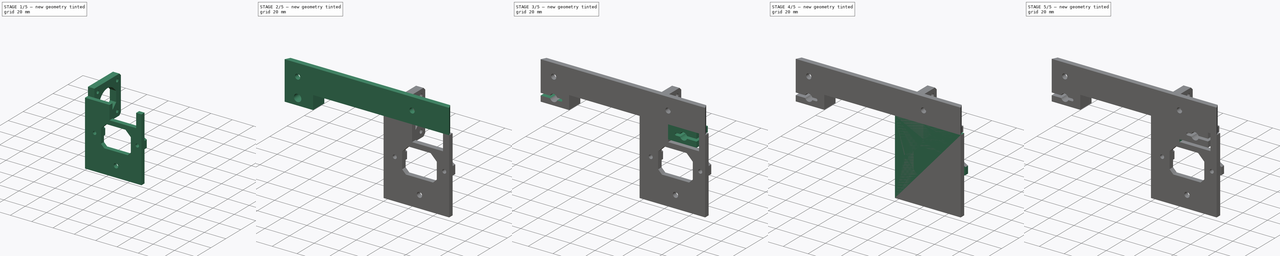
[diagram: build sequence overview — one tinted view per stage of 5, left to right]
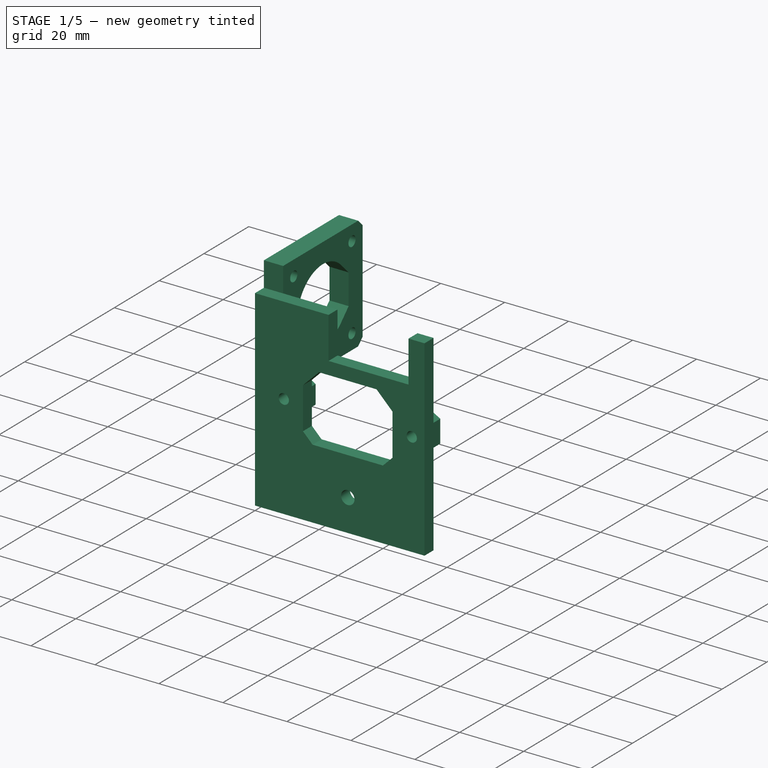
[diagram: stage 1 of 5 — iso view after this stage's code; geometry added in this stage tinted green]
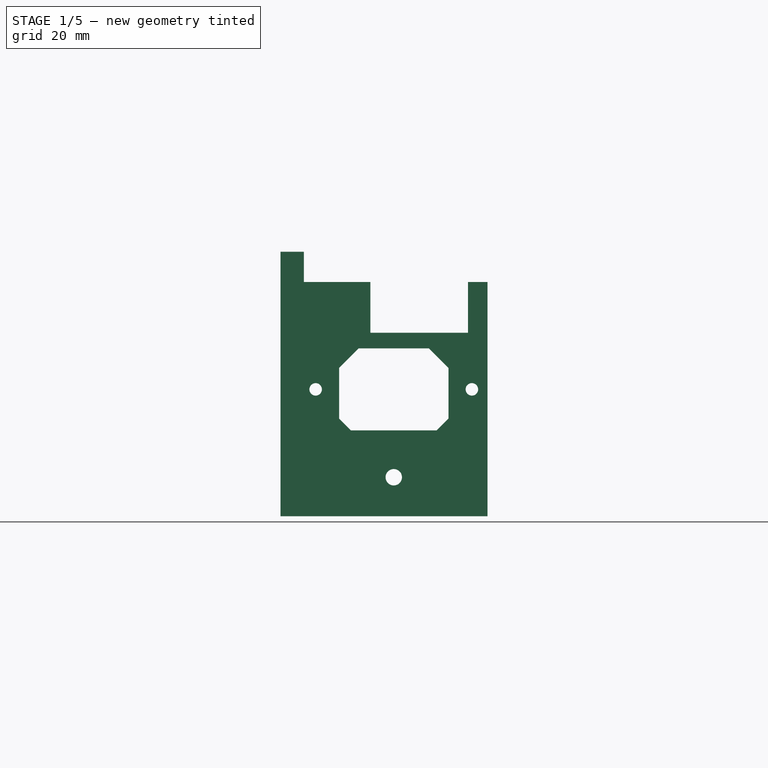
[diagram: stage 1 of 5 — front view after this stage's code; geometry added in this stage tinted green]
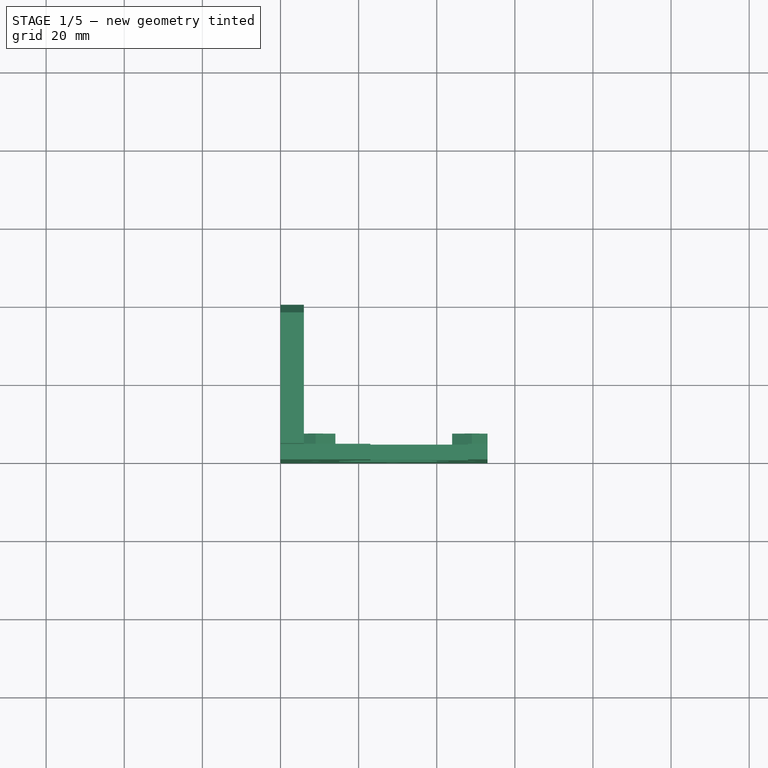
[diagram: stage 1 of 5 — top view after this stage's code; geometry added in this stage tinted green]
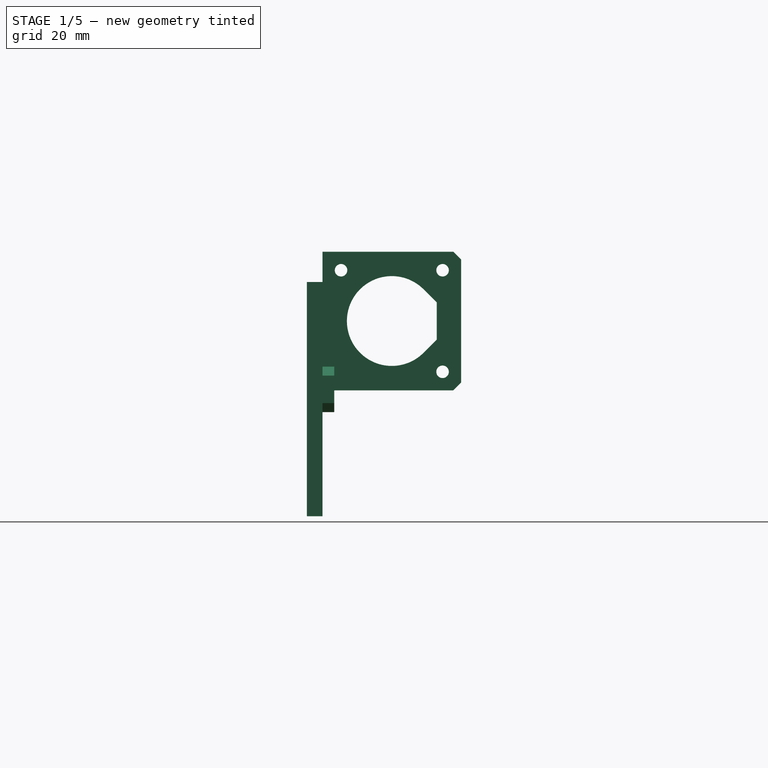
[diagram: stage 1 of 5 — right view after this stage's code; geometry added in this stage tinted green]
FCSTD DOCUMENT  (FreeCAD 0.14R3692 (Git))
Label: y-motor
License: CC-BY 3.0
LicenseURL: http://creativecommons.org/licenses/by/3.0/
objects: Sketcher::SketchObject×10, PartDesign::Pocket×9, Part::Feature×7, Part::Box×4, Part::Chamfer×2, Part::MultiFuse×2, Part::Mirroring×1, Part::Prism×1, Part::Thickness×1, Part::FeaturePython×1, App::DocumentObjectGroup×1, PartDesign::Pad×1
note: 49 computed .brp shape members not serialized (recipe doc carries the construction recipe); baked Part::Feature solids carry a one-line shape summary decoded from their .brp

FEATURE [Part::Box] Box003  label="motor-cube"
  Height = 35.5
  Length = 6
  Placement = pos=(80,4,-27.75) rot=(0,0,1;0rad)
  Width = 35.5
FEATURE [Sketcher::SketchObject] Sketch006  label="motor-holes-cutout-sketch"
  Placement = pos=(86,4,-27.75) rot=(0.57735,0.57735,0.57735;2.0944rad)
  Support = -> Box003 [Face2]
  sketch-geometry (7):
    g0: ArcOfCircle CenterX=17.75 CenterY=17.75 CenterZ=0 NormalX=0 NormalY=0 NormalZ=1 Radius=11.5 StartAngle=0.785397 EndAngle=5.49779
    g1: Circle CenterX=30.75 CenterY=4.75 CenterZ=0 NormalX=0 NormalY=0 NormalZ=1 Radius=1.6
    g2: Circle CenterX=4.75 CenterY=30.75 CenterZ=0 NormalX=0 NormalY=0 NormalZ=1 Radius=1.6
    g3: Circle CenterX=30.75 CenterY=30.75 CenterZ=0 NormalX=0 NormalY=0 NormalZ=1 Radius=1.6
    g4: LineSegment StartX=25.8817 StartY=25.8817 StartZ=0 EndX=29.25 EndY=22.5134 EndZ=0
    g5: LineSegment StartX=29.25 StartY=22.5134 StartZ=0 EndX=29.25 EndY=12.9865 EndZ=0
    g6: LineSegment StartX=29.25 StartY=12.9865 StartZ=0 EndX=25.8817 EndY=9.61826 EndZ=0
  constraints (22):
    c: DistanceX(g-1,g0) = 17.75
    c: DistanceY(g-1,g0) = 17.75
    c: Radius(g3) = 1.6
    c: Equal(g3,g2)
    c: Equal(g2,g1)
    c: DistanceX(g2,g0) = 13
    c: DistanceY(g0,g2) = 13
    c: DistanceX(g0,g3) = 13
    c: DistanceY(g0,g3) = 13
    c: DistanceX(g0,g1) = 13
    c: DistanceY(g1,g0) = 13
    c: Radius(g0) = 11.5
    c: Coincident(g4,g5)
    c: Coincident(g5,g6)
    c: Vertical(g5)
    c: Angle(g4,g6) = 1.5708
    c: Equal(g6,g4)
    c: DistanceX(g0,g5) = 11.5
    c: Coincident(g0,g4)
    c: Coincident(g6,g0)
    c: Tangent(g6,g0)
    c: Tangent(g4,g0)
FEATURE [PartDesign::Pocket] Pocket006  label="motor-holes-cutout-pocket"
  Length = 6
  Placement = pos=(80,4,-27.75) rot=(0,0,1;0rad)
  Sketch = -> Sketch006
  Type = 0
FEATURE [Part::Chamfer] Chamfer  label="motor-chamfer"
  Base = -> Pocket006
  Edges = 2 edges r=2: [Edge6,Edge18]
FEATURE [Part::Feature] Fusion001  label="plug-nuts-fusion-refined"
  shape: bbox 54.05 x 7.002 x 60 mm, 50 faces (baked)
FEATURE [Sketcher::SketchObject] Sketch011  label="plug-nut-cutout-sketch"
  Placement = pos=(0,7,0) rot=(0,0.707107,0.707107;3.14159rad)
  Support = -> Fusion001 [Face42]
  sketch-geometry (4):
    g0: LineSegment StartX=-133 StartY=-22.5 StartZ=0 EndX=-135 EndY=-22.5 EndZ=0
    g1: LineSegment StartX=-135 StartY=-22.5 StartZ=0 EndX=-135 EndY=-32.5 EndZ=0
    g2: LineSegment StartX=-135 StartY=-32.5 StartZ=0 EndX=-133 EndY=-32.5 EndZ=0
    g3: LineSegment StartX=-133 StartY=-32.5 StartZ=0 EndX=-133 EndY=-22.5 EndZ=0
  constraints (12):
    c: Coincident(g0,g1)
    c: Coincident(g1,g2)
    c: Coincident(g2,g3)
    c: Coincident(g3,g0)
    c: Horizontal(g0)
    c: Horizontal(g2)
    c: Vertical(g1)
    c: Vertical(g3)
    c: DistanceY(g3) = 10
    c: DistanceX(g0) = -2
    c: DistanceY(g-1,g0) = -22.5
    c: DistanceX(g-1,g0) = -133
FEATURE [PartDesign::Pocket] Pocket009002  label="plug-nut-cutout-pocket"
  Length = 3
  Sketch = -> Sketch011
  Type = 0
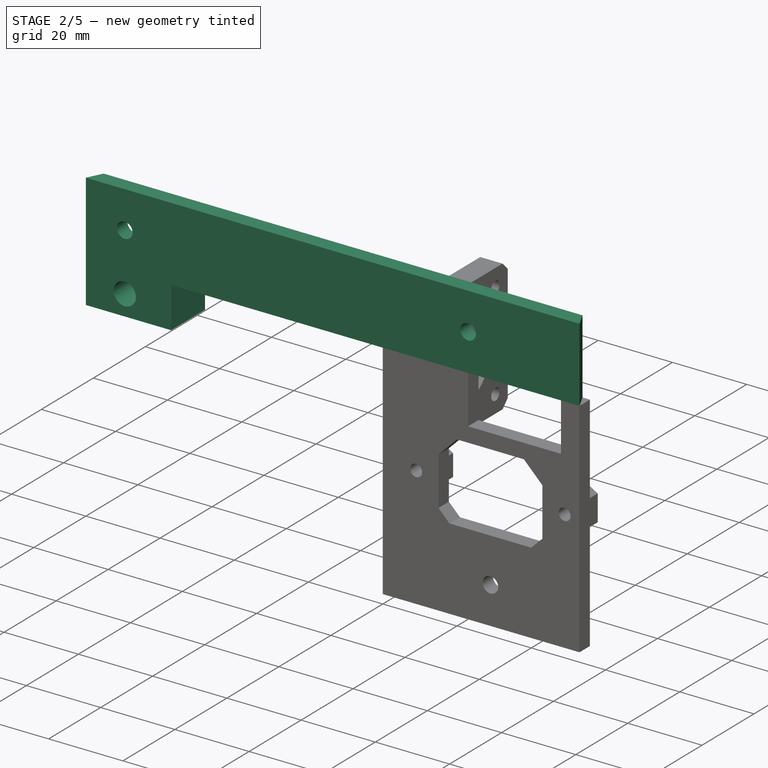
[diagram: stage 2 of 5 — iso view after this stage's code; geometry added in this stage tinted green]
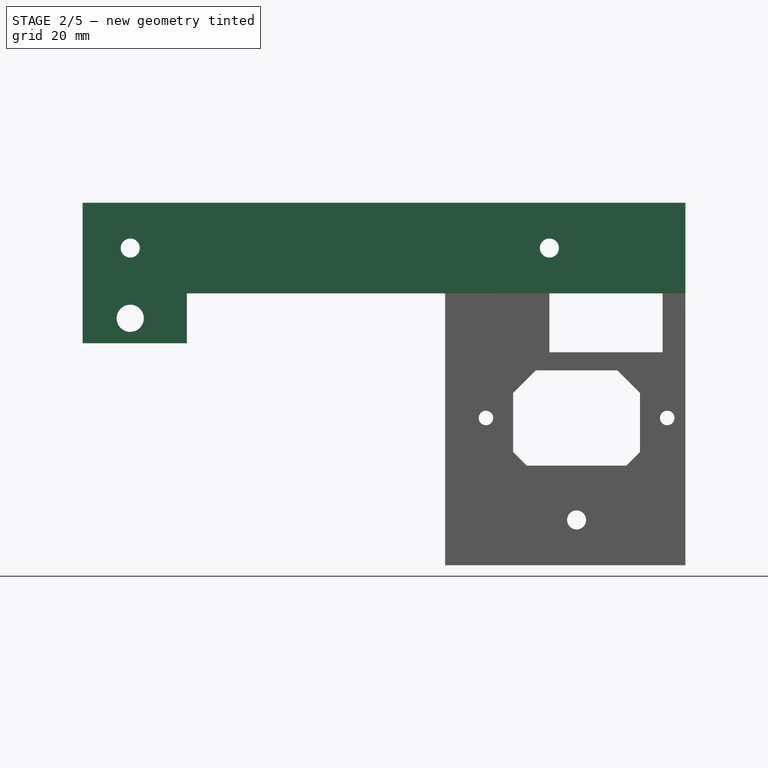
[diagram: stage 2 of 5 — front view after this stage's code; geometry added in this stage tinted green]
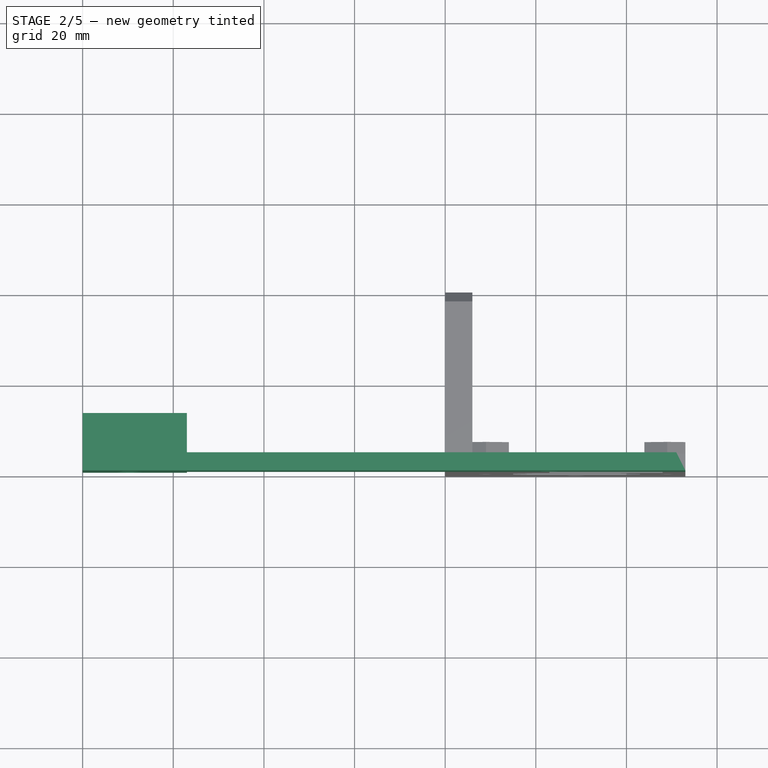
[diagram: stage 2 of 5 — top view after this stage's code; geometry added in this stage tinted green]
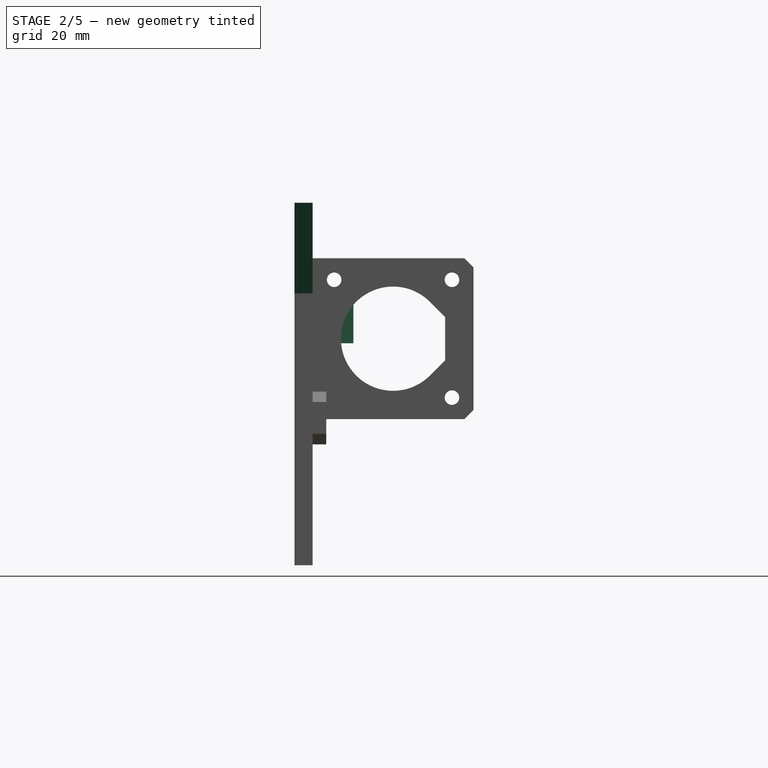
[diagram: stage 2 of 5 — right view after this stage's code; geometry added in this stage tinted green]
FEATURE [Part::Box] Box  label="body-cube"
  Height = 20
  Length = 133
  Width = 4
FEATURE [Part::Box] Box002  label="smooth-rod-y-left-holder-cube"
  Height = 11
  Length = 23
  Placement = pos=(0,0,-11) rot=(0,0,1;0rad)
  Width = 13
FEATURE [Sketcher::SketchObject] Sketch  label="smooth-rod-y-left-hole-sketch"
  Placement = pos=(0,13,-11) rot=(0,0.707107,0.707107;3.14159rad)
  Support = -> Box002 [Face4]
  sketch-geometry (1):
    g0: Circle CenterX=-10.5 CenterY=5.5 CenterZ=0 NormalX=0 NormalY=0 NormalZ=1 Radius=3
  constraints (3):
    c: Radius(g0) = 3
    c: DistanceX(g-1,g0) = -10.5
    c: DistanceY(g-1,g0) = 5.5
FEATURE [PartDesign::Pocket] Pocket  label="smooth-rod-y-left-hole-pocket"
  Length = 13
  Placement = pos=(0,0,-11) rot=(0,0,1;0rad)
  Sketch = -> Sketch
  Type = 0
FEATURE [Sketcher::SketchObject] Sketch004  label="slot-rear-top-screw-holes-sketch"
  Placement = pos=(0,4,0) rot=(0,0.707107,0.707107;3.14159rad)
  Support = -> Box [Face4]
  sketch-geometry (2):
    g0: Circle CenterX=-10.5 CenterY=10 CenterZ=0 NormalX=0 NormalY=0 NormalZ=1 Radius=2.1
    g1: Circle CenterX=-103 CenterY=10 CenterZ=0 NormalX=0 NormalY=0 NormalZ=1 Radius=2.1
  constraints (6):
    c: DistanceX(g-1,g0) = -10.5
    c: DistanceY(g-1,g0) = 10
    c: Radius(g0) = 2.1
    c: DistanceX(g-1,g1) = -103
    c: DistanceY(g-1,g1) = 10
    c: Equal(g1,g0)
FEATURE [PartDesign::Pocket] Pocket004  label="slot-rear-top-screw-holes-pocket"
  Length = 4
  Sketch = -> Sketch004
  Type = 0
FEATURE [Sketcher::SketchObject] Sketch009  label="slot-rear-top-chamfer-sketch"
  ExternalGeometry = -> [Pocket004]
  Placement = pos=(0,0,20) rot=(0,0,1;0rad)
  Support = -> Pocket004 [Face3]
  sketch-geometry (6):
    g0: LineSegment StartX=0 StartY=0 StartZ=0 EndX=2 EndY=4 EndZ=0
    g1: LineSegment StartX=2 StartY=4 StartZ=0 EndX=0 EndY=4 EndZ=0
    g2: LineSegment StartX=0 StartY=4 StartZ=0 EndX=0 EndY=0 EndZ=0
    g3: LineSegment StartX=133 StartY=0 StartZ=0 EndX=131 EndY=4 EndZ=0
    g4: LineSegment StartX=131 StartY=4 StartZ=0 EndX=133 EndY=4 EndZ=0
    g5: LineSegment StartX=133 StartY=4 StartZ=0 EndX=133 EndY=0 EndZ=0
  constraints (15):
    c: Coincident(g0,g1)
    c: Coincident(g1,g2)
    c: Coincident(g2,g0)
    c: Vertical(g2)
    c: Horizontal(g1)
    c: Coincident(g0,g-1)
    c: DistanceY(g2) = -4
    c: DistanceX(g1) = -2
    c: Coincident(g3,g4)
    c: Coincident(g4,g5)
    c: Coincident(g5,g3)
    c: Horizontal(g4)
    c: Coincident(g4,g-3)
    c: Coincident(g3,g-3)
    c: Equal(g4,g1)
FEATURE [PartDesign::Pocket] Pocket008  label="slot-rear-top-chamfer-pocket"
  Length = 20
  Sketch = -> Sketch009
  Type = 0
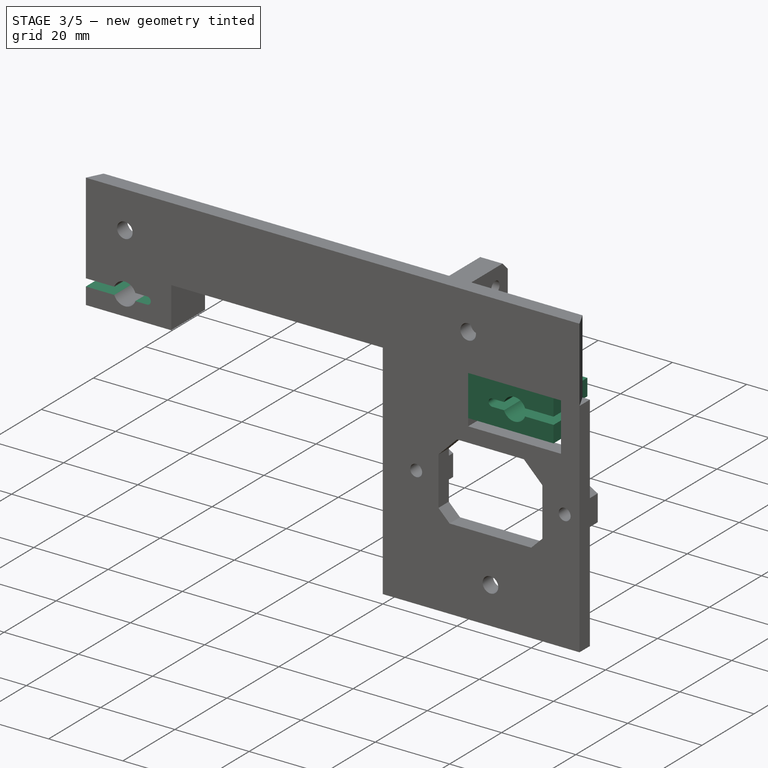
[diagram: stage 3 of 5 — iso view after this stage's code; geometry added in this stage tinted green]
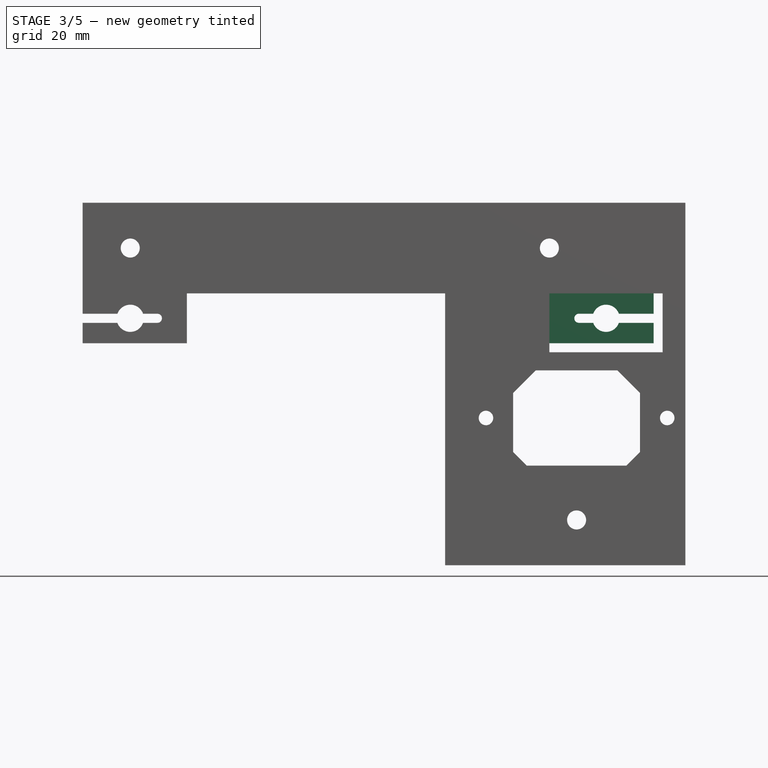
[diagram: stage 3 of 5 — front view after this stage's code; geometry added in this stage tinted green]
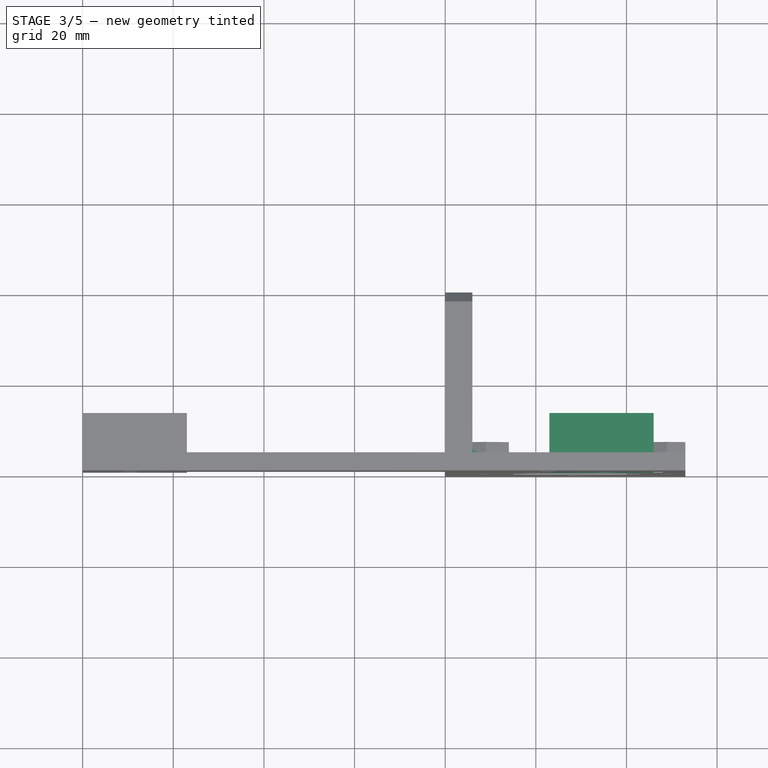
[diagram: stage 3 of 5 — top view after this stage's code; geometry added in this stage tinted green]
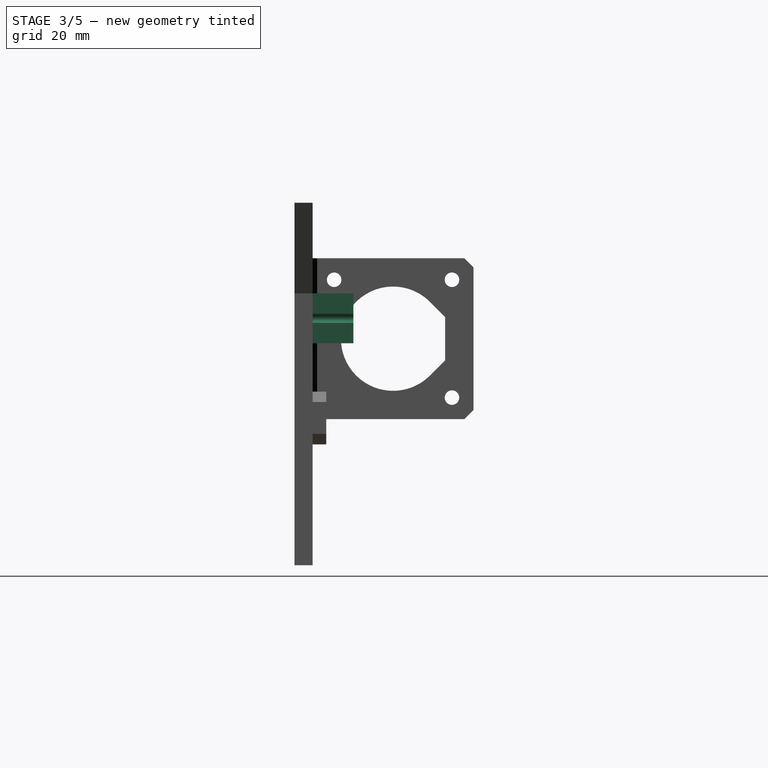
[diagram: stage 3 of 5 — right view after this stage's code; geometry added in this stage tinted green]
FEATURE [Sketcher::SketchObject] Sketch001  label="smooth-rod-y-left-cut-sketch"
  Placement = pos=(0,13,-11) rot=(0,0.707107,0.707107;3.14159rad)
  Support = -> Pocket [Face4]
  sketch-geometry (4):
    g0: ArcOfCircle CenterX=0 CenterY=5.5 CenterZ=0 NormalX=0 NormalY=0 NormalZ=1 Radius=1 StartAngle=4.71239 EndAngle=7.85398
    g1: ArcOfCircle CenterX=-16.5 CenterY=5.5 CenterZ=0 NormalX=0 NormalY=0 NormalZ=1 Radius=1 StartAngle=1.5708 EndAngle=4.71239
    g2: LineSegment StartX=4.9665e-08 StartY=6.5 StartZ=0 EndX=-16.5 EndY=6.5 EndZ=0
    g3: LineSegment StartX=-2.9397e-08 StartY=4.5 StartZ=0 EndX=-16.5 EndY=4.5 EndZ=0
  constraints (14):
    c: Tangent(g0,g2)
    c: Tangent(g0,g3)
    c: Tangent(g1,g2)
    c: Tangent(g1,g3)
    c: Coincident(g0,g3)
    c: Coincident(g0,g2)
    c: Coincident(g2,g1)
    c: Coincident(g3,g1)
    c: Horizontal(g2)
    c: Equal(g0,g1)
    c: PointOnObject(g0,g-2)
    c: Radius(g1) = 1
    c: DistanceX(g3) = -16.5
    c: DistanceY(g-1,g0) = 5.5
FEATURE [PartDesign::Pocket] Pocket001  label="smooth-rod-y-left-cut-pocket"
  Length = 13
  Placement = pos=(0,0,-11) rot=(0,0,1;0rad)
  Sketch = -> Sketch001
  Type = 0
FEATURE [Part::Mirroring] Part__Mirroring  label="smooth-rod-y-right-holder"
  Base = (63,0,0)
  Normal = (1,0,0)
  Source = -> Pocket001
FEATURE [Part::MultiFuse] Fusion002  label="body-smooth-rod-holder-plug-motor-fusion"
  Shapes = -> [Pocket009002,Pocket008,Part__Mirroring,Pocket001,Chamfer]
FEATURE [Part::Feature] Part__Feature001  label="extrusion-p20n6b-200-bottom-rear"
  Placement = pos=(-37,-10,-50) rot=(0,1,0;1.5708rad)
  shape: bbox 200 x 20 x 20 mm, 154 faces (baked)
FEATURE [Part::Feature] Part__Feature002  label="extrusion-p20n6b-200-top-rear"
  Placement = pos=(-37,-10,10) rot=(0,1,0;1.5708rad)
  shape: bbox 200 x 20 x 20 mm, 154 faces (baked)
FEATURE [Part::Feature] Part__Feature003  label="smooth-rod-06-300-y-left"
  Placement = pos=(10.5,0,-5.5) rot=(-1,0,0;1.5708rad)
  shape: bbox 6 x 300 x 6 mm, 3 faces (baked)
FEATURE [Part::Feature] Part__Feature004  label="smooth-rod-06-300-y-right"
  Placement = pos=(115.5,0,-5.5) rot=(-1,0,0;1.5708rad)
  shape: bbox 6 x 300 x 6 mm, 3 faces (baked)
FEATURE [Part::Feature] Part__Feature005  label="nema14-stepper-motor-y"
  Placement = pos=(80,21.75,-10) rot=(0,1,0;1.5708rad)
  shape: bbox 61.75 x 35.05 x 36.32 mm, 100 faces (baked)
FEATURE [App::DocumentObjectGroup] Grupo  label="aux"
  Group = -> [Part__Feature001,Part__Feature002,Part__Feature003,Part__Feature004,Part__Feature005]
FEATURE [Part::Chamfer] Chamfer005  label="motor-reinforced-chamfer"
  Base = -> Fusion002
  Edges = 2 edges r=1: [Edge27,Edge82]
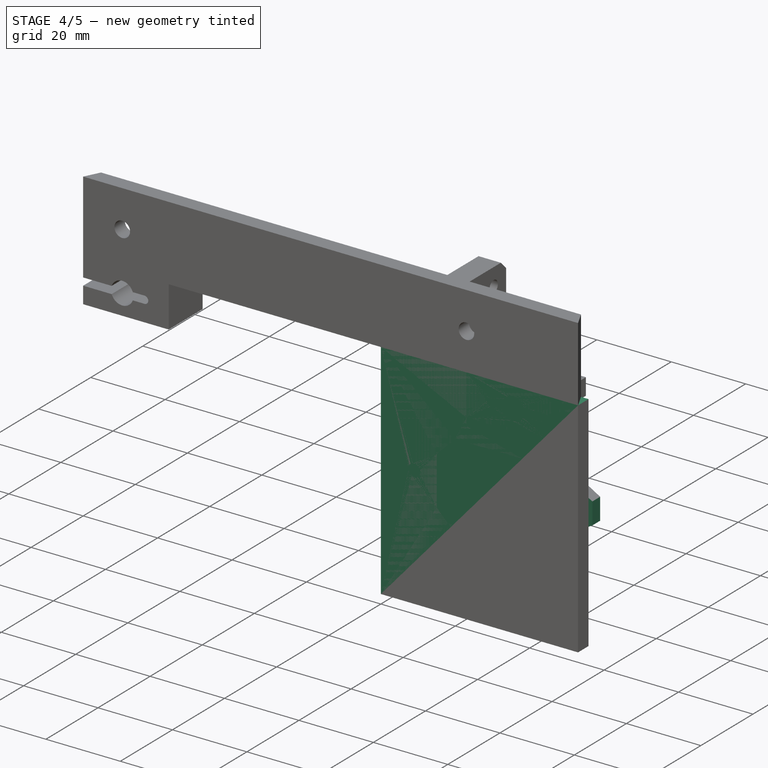
[diagram: stage 4 of 5 — iso view after this stage's code; geometry added in this stage tinted green]
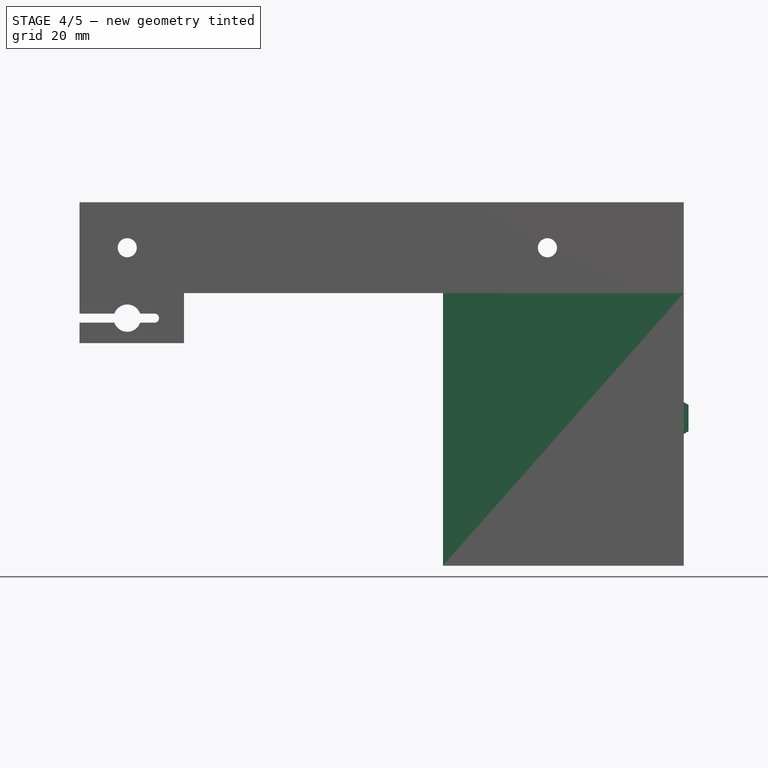
[diagram: stage 4 of 5 — front view after this stage's code; geometry added in this stage tinted green]
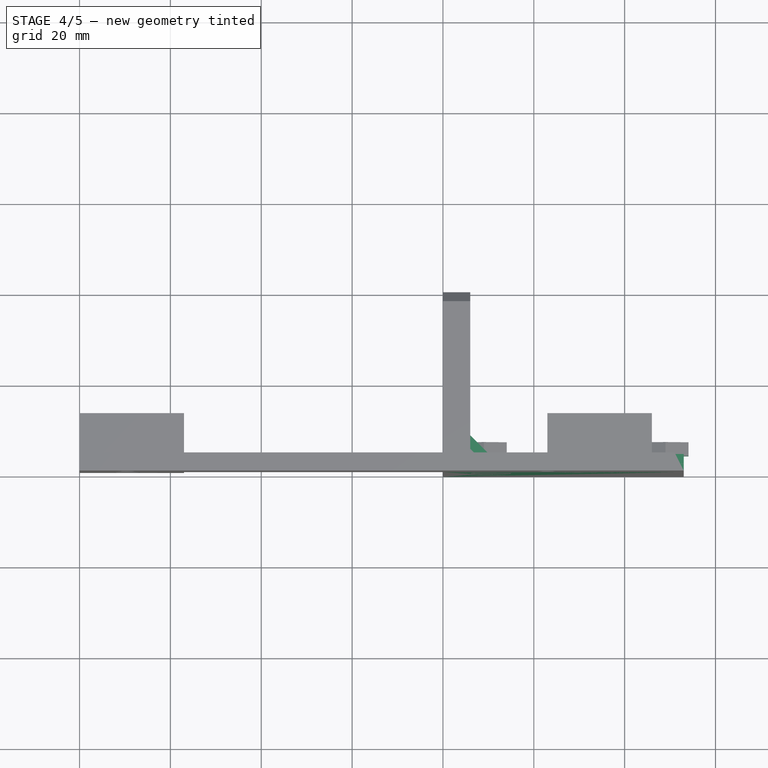
[diagram: stage 4 of 5 — top view after this stage's code; geometry added in this stage tinted green]
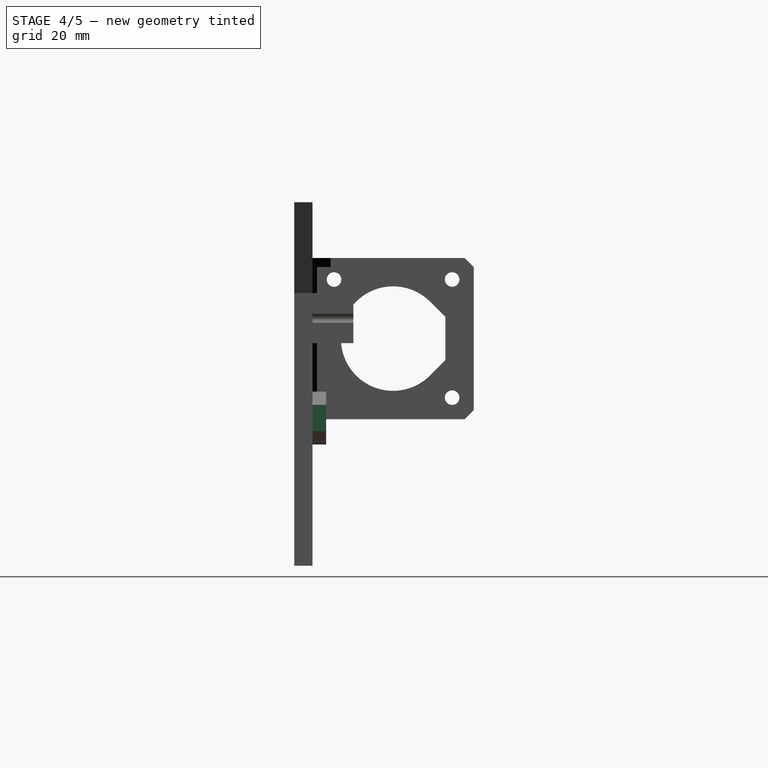
[diagram: stage 4 of 5 — right view after this stage's code; geometry added in this stage tinted green]
FEATURE [Part::Box] Box001  label="plug-cube"
  Height = 60
  Length = 53
  Placement = pos=(80,0,-60) rot=(0,0,1;0rad)
  Width = 4
FEATURE [Part::Prism] Prism  label="plug-nut-prism"
  Circumradius = 3.4
  Height = 3
  Placement = pos=(89,4,-27.5) rot=(-0.935113,0.250563,0.250563;1.63783rad)
  Polygon = 6
FEATURE [Part::Thickness] Thickness  label="plug-nut-thickness"
  Faces = -> Prism [Face7,Face8]
  Intersection = false
  Join = 2
  Mode = 0
  SelfIntersection = false
  Value = 2.1
FEATURE [Part::FeaturePython] Array  label="plug-nuts-array"  # Draft array (typed FeaturePython)
  Angle = 360
  ArrayType = 0
  Axis = (0,0,1)
  Base = -> Thickness
  Center = (0,0,0)
  IntervalX = (40,0,0)
  IntervalY = (0,0,0)
  IntervalZ = (0,0,0)
  NumberPolar = 1
  NumberX = 2
  NumberY = 0
  NumberZ = 0
FEATURE [Sketcher::SketchObject] Sketch012  label="motor-reinforced-sketch"
  Placement = pos=(0,0,7.75) rot=(0,0,1;0rad)
  Support = -> Chamfer005 [Face35]
  sketch-geometry (3):
    g0: LineSegment StartX=86 StartY=8 StartZ=0 EndX=86 EndY=4 EndZ=0
    g1: LineSegment StartX=86 StartY=4 StartZ=0 EndX=90 EndY=4 EndZ=0
    g2: LineSegment StartX=90 StartY=4 StartZ=0 EndX=86 EndY=8 EndZ=0
  constraints (9):
    c: Coincident(g0,g1)
    c: Coincident(g1,g2)
    c: Coincident(g2,g0)
    c: Horizontal(g1)
    c: Vertical(g0)
    c: DistanceX(g1) = 4
    c: Equal(g1,g0)
    c: DistanceY(g-1,g0) = 4
    c: DistanceX(g-1,g0) = 86
FEATURE [PartDesign::Pad] Pad001  label="motor-reinforced-pad"
  Length = 2
  Length2 = 100
  Reversed = true
  Sketch = -> Sketch012
  Type = 0
FEATURE [Part::Feature] Pad001002  label="y-motor"
  shape: bbox 133 x 39.5 x 80 mm, 96 faces (baked)
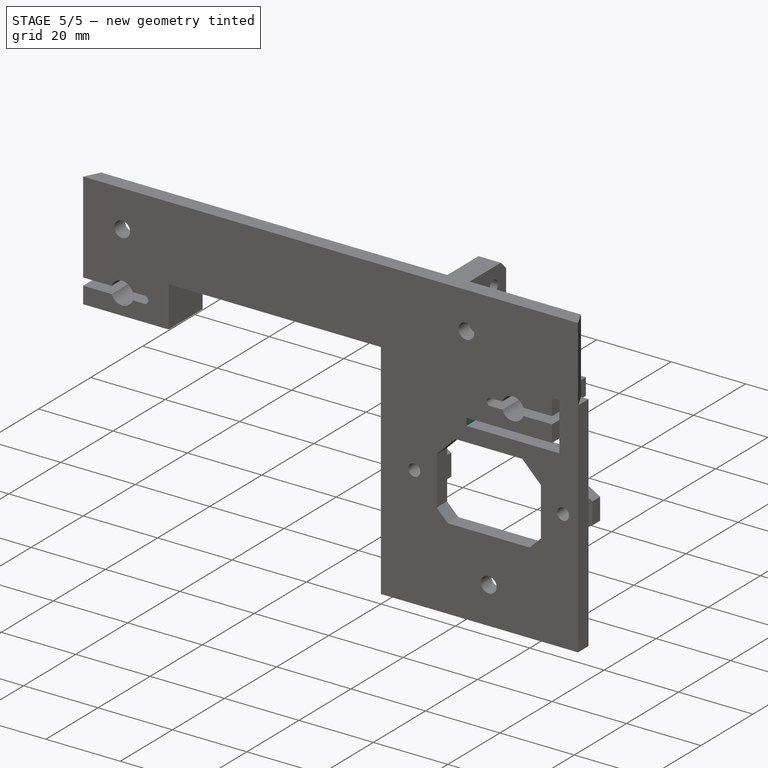
[diagram: stage 5 of 5 — iso view after this stage's code; geometry added in this stage tinted green]
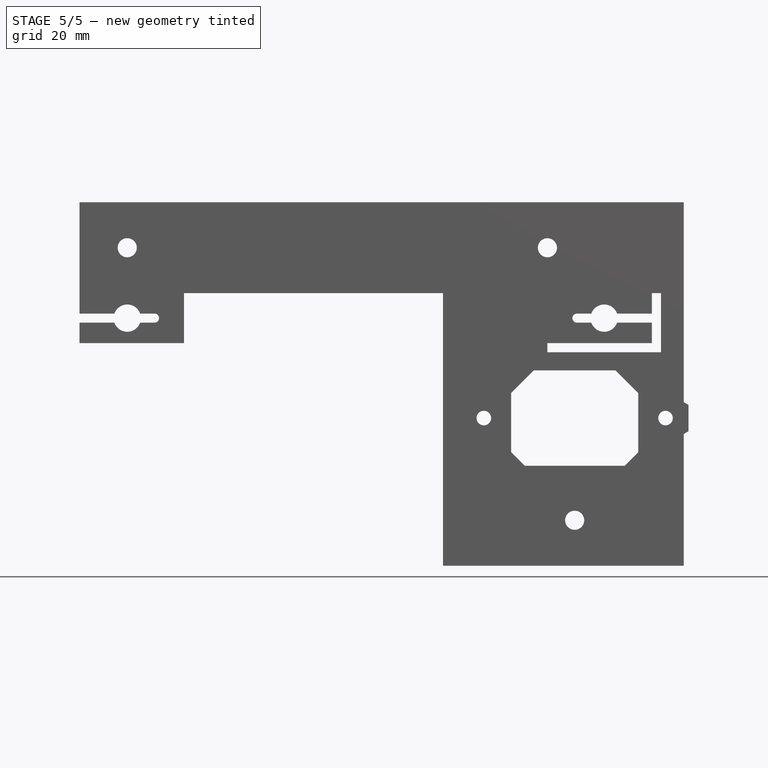
[diagram: stage 5 of 5 — front view after this stage's code; geometry added in this stage tinted green]
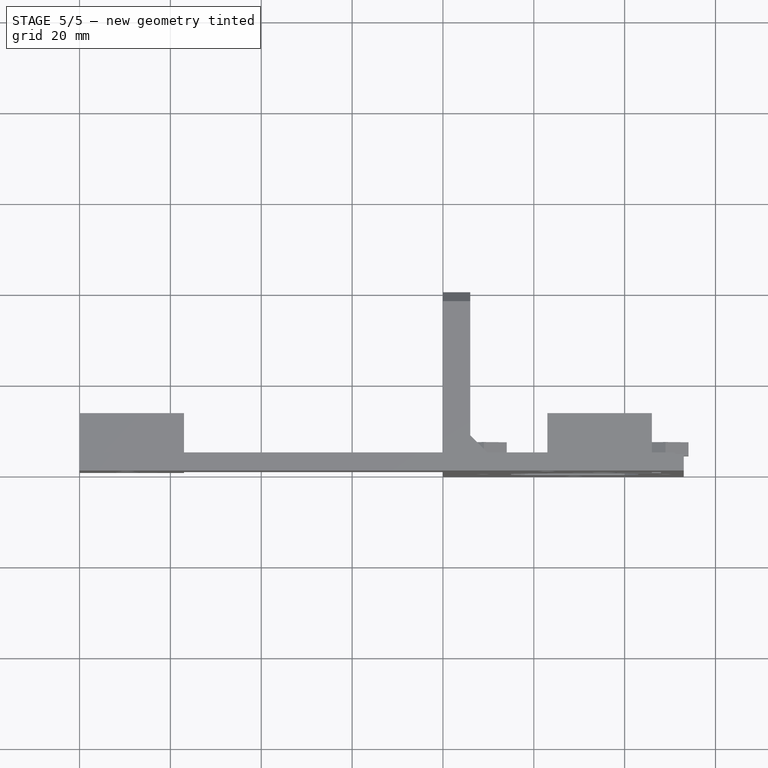
[diagram: stage 5 of 5 — top view after this stage's code; geometry added in this stage tinted green]
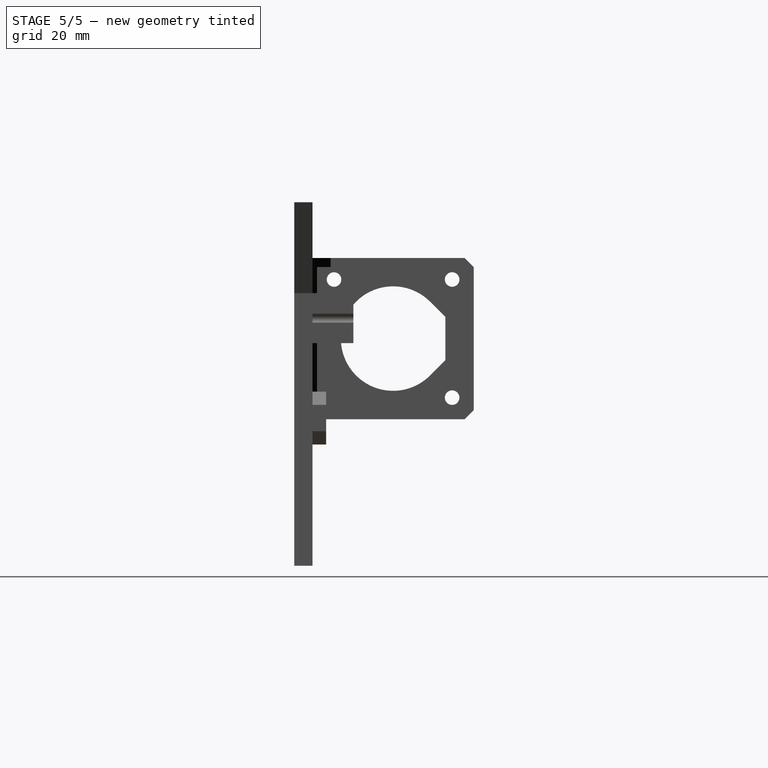
[diagram: stage 5 of 5 — right view after this stage's code; geometry added in this stage tinted green]
FEATURE [Sketcher::SketchObject] Sketch002  label="smooth-rod-y-right-cutout-sketch"
  ExternalGeometry = -> [Box001]
  Placement = pos=(80,4,-60) rot=(0,0.707107,0.707107;3.14159rad)
  Support = -> Box001 [Face4]
  sketch-geometry (4):
    g0: LineSegment StartX=-48 StartY=60 StartZ=0 EndX=-23 EndY=60 EndZ=0
    g1: LineSegment StartX=-23 StartY=60 StartZ=0 EndX=-23 EndY=47 EndZ=0
    g2: LineSegment StartX=-23 StartY=47 StartZ=0 EndX=-48 EndY=47 EndZ=0
    g3: LineSegment StartX=-48 StartY=47 StartZ=0 EndX=-48 EndY=60 EndZ=0
  constraints (12):
    c: Coincident(g0,g1)
    c: Coincident(g1,g2)
    c: Coincident(g2,g3)
    c: Coincident(g3,g0)
    c: Horizontal(g0)
    c: Horizontal(g2)
    c: Vertical(g1)
    c: Vertical(g3)
    c: PointOnObject(g0,g-3)
    c: DistanceX(g-3,g0) = 5
    c: DistanceY(g3) = 13
    c: DistanceX(g2) = -25
FEATURE [PartDesign::Pocket] Pocket002  label="smooth-rod-y-right-cutout-pocket"
  Length = 4
  Placement = pos=(80,0,-60) rot=(0,0,1;0rad)
  Sketch = -> Sketch002
  Type = 0
FEATURE [Sketcher::SketchObject] Sketch003  label="plug-holes-cutout-sketch"
  Placement = pos=(80,4,-60) rot=(0,0.707107,0.707107;3.14159rad)
  Support = -> Pocket002 [Face4]
  sketch-geometry (10):
    g0: LineSegment StartX=-18 StartY=22 StartZ=0 EndX=-40 EndY=22 EndZ=0
    g1: LineSegment StartX=-40 StartY=22 StartZ=0 EndX=-43 EndY=25 EndZ=0
    g2: LineSegment StartX=-43 StartY=25 StartZ=0 EndX=-43 EndY=38 EndZ=0
    g3: LineSegment StartX=-43 StartY=38 StartZ=0 EndX=-38 EndY=43 EndZ=0
    g4: LineSegment StartX=-38 StartY=43 StartZ=0 EndX=-20 EndY=43 EndZ=0
    g5: LineSegment StartX=-20 StartY=43 StartZ=0 EndX=-15 EndY=38 EndZ=0
    g6: LineSegment StartX=-15 StartY=38 StartZ=0 EndX=-15 EndY=25 EndZ=0
    g7: LineSegment StartX=-15 StartY=25 StartZ=0 EndX=-18 EndY=22 EndZ=0
    g8: Circle CenterX=-9 CenterY=32.5 CenterZ=0 NormalX=0 NormalY=0 NormalZ=1 Radius=1.6
    g9: Circle CenterX=-49 CenterY=32.5 CenterZ=0 NormalX=0 NormalY=0 NormalZ=1 Radius=1.6
  constraints (30):
    c: Coincident(g0,g1)
    c: Coincident(g1,g2)
    c: Coincident(g2,g3)
    c: Coincident(g3,g4)
    c: Coincident(g4,g5)
    c: Coincident(g5,g6)
    c: Coincident(g6,g7)
    c: Coincident(g7,g0)
    c: Horizontal(g0)
    c: Horizontal(g4)
    c: Vertical(g6)
    c: Vertical(g2)
    c: DistanceX(g0) = -22
    c: DistanceX(g4) = 18
    c: DistanceY(g2) = 13
    c: Equal(g2,g6)
    c: Equal(g3,g5)
    c: Equal(g1,g7)
    c: DistanceY(g-1,g0) = 22
    c: Angle(g0,g1) = 2.35619
    c: Angle(g7,g0) = 2.35619
    c: Angle(g4,g5) = 2.35619
    c: DistanceX(g1,g6) = 28
    c: DistanceX(g-1,g6) = -15
    c: DistanceY(g-1,g8) = 32.5
    c: Radius(g8) = 1.6
    c: DistanceY(g-1,g9) = 32.5
    c: Equal(g9,g8)
    c: DistanceX(g9,g8) = 40
    c: DistanceX(g-1,g8) = -9
FEATURE [PartDesign::Pocket] Pocket003  label="plug-holes-cutout-pocket"
  Length = 4
  Placement = pos=(80,0,-60) rot=(0,0,1;0rad)
  Sketch = -> Sketch003
  Type = 0
FEATURE [Sketcher::SketchObject] Sketch005  label="slot-rear-bottom-screw-hole-sketch"
  Placement = pos=(80,4,-60) rot=(0,0.707107,0.707107;3.14159rad)
  Support = -> Pocket003 [Face4]
  sketch-geometry (1):
    g0: Circle CenterX=-29 CenterY=10 CenterZ=0 NormalX=0 NormalY=0 NormalZ=1 Radius=2.1
  constraints (3):
    c: DistanceY(g-1,g0) = 10
    c: Radius(g0) = 2.1
    c: DistanceX(g-1,g0) = -29
FEATURE [PartDesign::Pocket] Pocket005  label="slot-rear-bottom-screw-hole-pocket"
  Length = 4
  Placement = pos=(80,0,-60) rot=(0,0,1;0rad)
  Sketch = -> Sketch005
  Type = 0
FEATURE [Part::MultiFuse] Fusion  label="plug-nuts-fusion"
  Shapes = -> [Array,Pocket005]
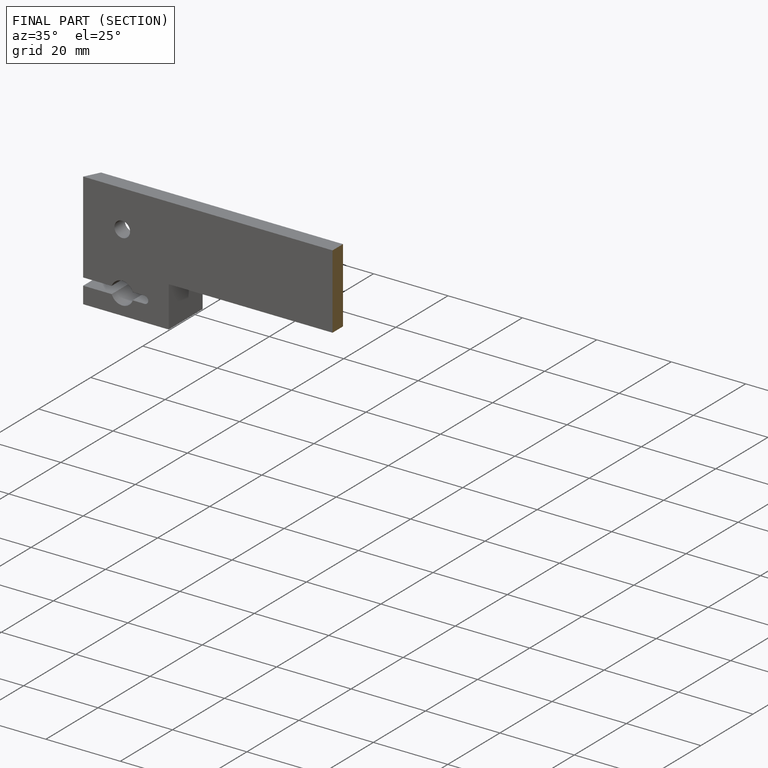
[diagram: finished part — half-section view (interior)]
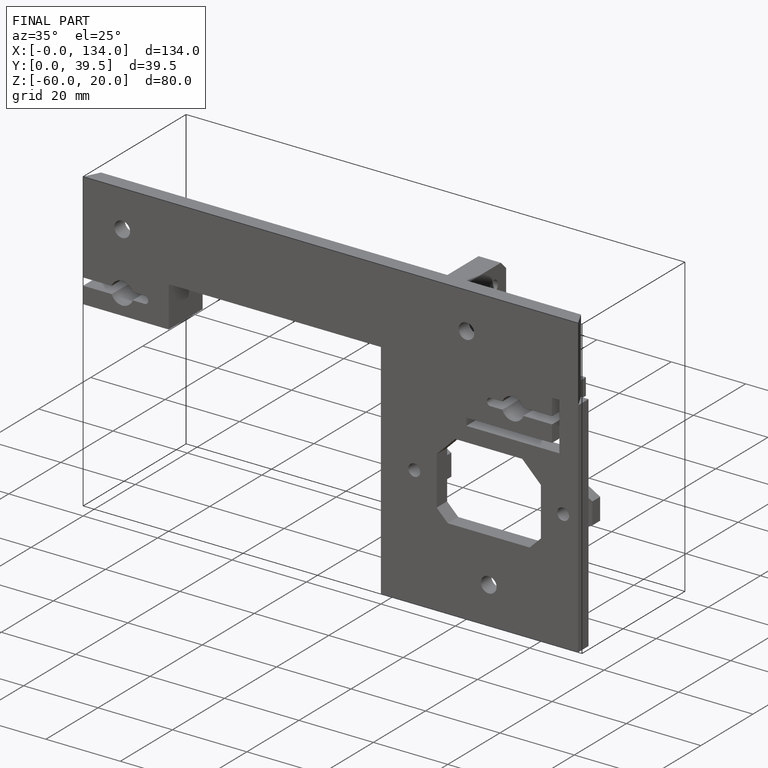
[diagram: finished part — iso view with bounding-box wireframe]
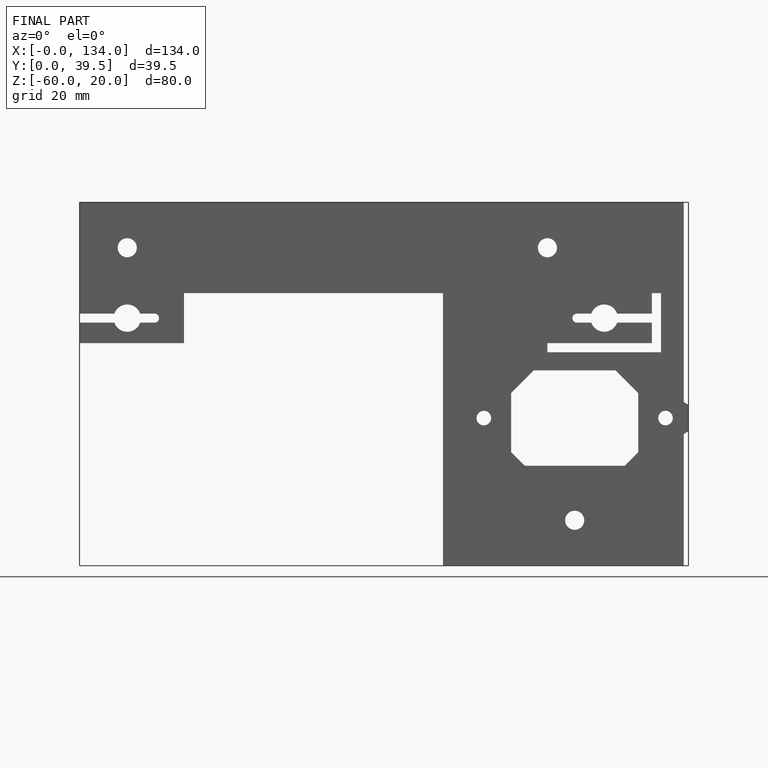
[diagram: finished part — front view with bounding-box wireframe]
